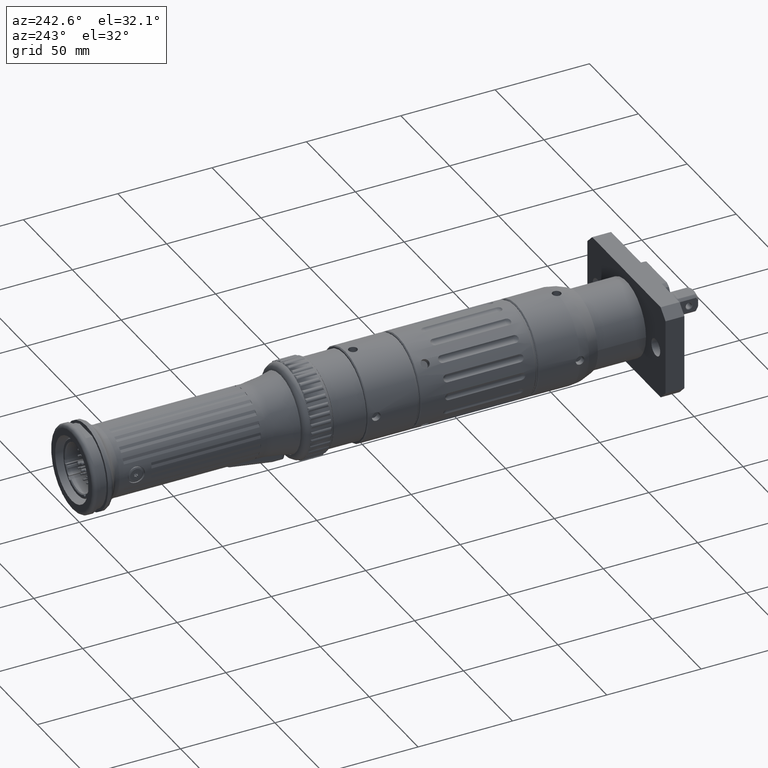
[diagram: clean part render]
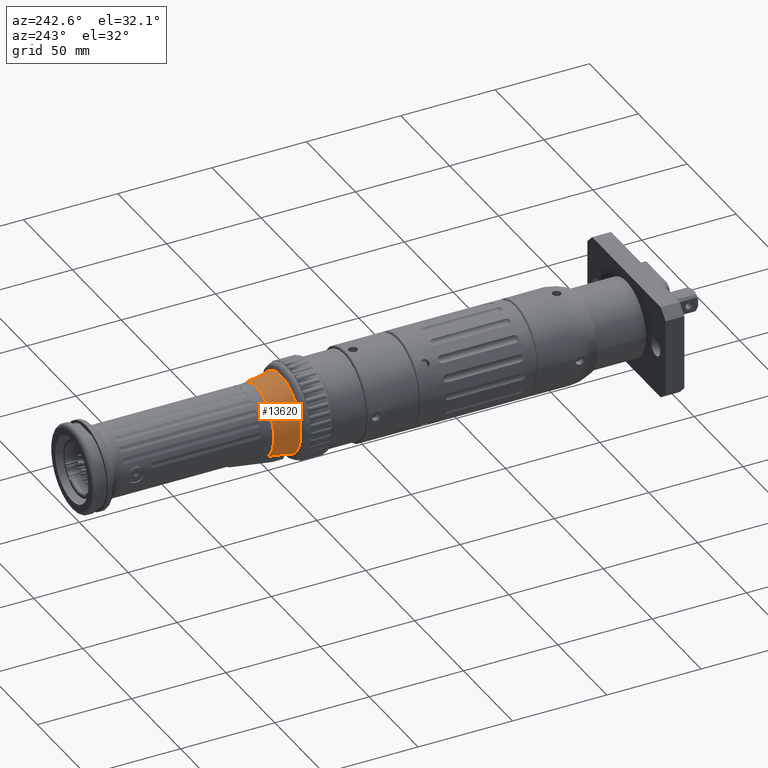
[diagram: same view with one face highlighted and labeled with its STEP entity id]
A machine part, auxiliary view. The second image highlights one B-rep face of the part: STEP entity #13620.
In plain terms, the highlighted conical surface has half-angle 9.462 deg.
Its self-contained STEP definition (entity closure, byte-faithful):
#89=(
BOUNDED_CURVE()
B_SPLINE_CURVE(2,(#21481,#21482,#21483),.UNSPECIFIED.,.F.,.F.)
B_SPLINE_CURVE_WITH_KNOTS((3,3),(0.301451099232859,1.34650575535226),
 .UNSPECIFIED.)
CURVE()
GEOMETRIC_REPRESENTATION_ITEM()
RATIONAL_B_SPLINE_CURVE((1.00077448627967,1.00178589435986,1.00050185933746))
REPRESENTATION_ITEM('')
);
#90=(
BOUNDED_CURVE()
B_SPLINE_CURVE(2,(#21493,#21494,#21495),.UNSPECIFIED.,.F.,.F.)
B_SPLINE_CURVE_WITH_KNOTS((3,3),(0.177331248463677,1.22238590458291),
 .UNSPECIFIED.)
CURVE()
GEOMETRIC_REPRESENTATION_ITEM()
RATIONAL_B_SPLINE_CURVE((1.00050185933742,1.0017858943597,1.00077448627961))
REPRESENTATION_ITEM('')
);
#482=CONICAL_SURFACE('',#14652,19.25,9.46232220802565);
#1140=FACE_OUTER_BOUND('',#2076,.T.);
#2076=EDGE_LOOP('',(#9227,#9228,#9229,#9230,#9231,#9232));
#2955=CIRCLE('',#14364,5268.20014690571);
#3092=CIRCLE('',#14640,5268.20014723951);
#3093=CIRCLE('',#14650,18.2721215233571);
#3095=CIRCLE('',#14653,20.5);
#5540=VERTEX_POINT('',#20754);
#5544=VERTEX_POINT('',#20771);
#5711=VERTEX_POINT('',#21478);
#5712=VERTEX_POINT('',#21480);
#5716=VERTEX_POINT('',#21492);
#5735=VERTEX_POINT('',#21870);
#6830=EDGE_CURVE('',#5540,#5544,#2955,.T.);
#7024=EDGE_CURVE('',#5712,#5711,#89,.T.);
#7029=EDGE_CURVE('',#5716,#5540,#90,.T.);
#7072=EDGE_CURVE('',#5735,#5712,#3092,.T.);
#7105=EDGE_CURVE('',#5716,#5711,#3093,.T.);
#7107=EDGE_CURVE('',#5544,#5735,#3095,.T.);
#9227=ORIENTED_EDGE('',*,*,#7105,.F.);
#9228=ORIENTED_EDGE('',*,*,#7029,.T.);
#9229=ORIENTED_EDGE('',*,*,#6830,.T.);
#9230=ORIENTED_EDGE('',*,*,#7107,.T.);
#9231=ORIENTED_EDGE('',*,*,#7072,.T.);
#9232=ORIENTED_EDGE('',*,*,#7024,.T.);
#13620=ADVANCED_FACE('',(#1140),#482,.T.);
#14364=AXIS2_PLACEMENT_3D('',#20773,#16277,#16278);
#14640=AXIS2_PLACEMENT_3D('',#21871,#16894,#16895);
#14650=AXIS2_PLACEMENT_3D('',#21938,#16946,#16947);
#14652=AXIS2_PLACEMENT_3D('',#21940,#16950,#16951);
#14653=AXIS2_PLACEMENT_3D('',#21941,#16952,#16953);
#16277=DIRECTION('center_axis',(-1.,-1.59972178624586E-12,9.00575151370838E-12));
#16278=DIRECTION('ref_axis',(-9.14672961967906E-12,0.174596569280771,-0.984640055043154));
#16894=DIRECTION('center_axis',(1.,4.0260122575636E-13,-2.26845774883989E-12));
#16895=DIRECTION('ref_axis',(-2.30390701443336E-12,0.175194385179483,-0.984533863004002));
#16946=DIRECTION('center_axis',(5.48477843742726E-16,1.,-3.14797576437676E-15));
#16947=DIRECTION('ref_axis',(-1.02166029305962E-15,3.14797576437676E-15,
1.));
#16950=DIRECTION('center_axis',(-5.48477843742726E-16,-1.,3.14797576437676E-15));
#16951=DIRECTION('ref_axis',(-9.2981178312357E-16,3.14797576437676E-15,
1.));
#16952=DIRECTION('center_axis',(5.48477843742726E-16,1.,-3.14797576437676E-15));
#16953=DIRECTION('ref_axis',(-1.,5.48477843742723E-16,-9.29811783123572E-16));
#20754=CARTESIAN_POINT('',(-7.00000000000013,196.149413788061,-18.708407954822));
#20771=CARTESIAN_POINT('',(-6.99999999999983,193.,-19.2678488679978));
#20773=CARTESIAN_POINT('Origin',(-6.99999995181303,-726.809671934194,5168.0130337596));
#21478=CARTESIAN_POINT('',(7.00000000000018,206.367270859858,-16.8781048984872));
#21480=CARTESIAN_POINT('',(6.99999999999988,196.149413788061,-18.7084079548222));
#21481=CARTESIAN_POINT('Ctrl Pts',(7.00000000000017,196.14941378806,-18.7084079548221));
#21482=CARTESIAN_POINT('Ctrl Pts',(7.00000000000017,201.521107252719,-17.7525088563988));
#21483=CARTESIAN_POINT('Ctrl Pts',(7.00000000000017,206.367270859858,-16.8781048984872));
#21492=CARTESIAN_POINT('',(-6.99999999999983,206.367270859858,-16.8781048984872));
#21493=CARTESIAN_POINT('Ctrl Pts',(-6.99999999999983,206.367270859858,-16.8781048984872));
#21494=CARTESIAN_POINT('Ctrl Pts',(-6.99999999999983,201.521107252717,-17.7525088563992));
#21495=CARTESIAN_POINT('Ctrl Pts',(-6.99999999999983,196.149413788061,-18.7084079548221));
#21870=CARTESIAN_POINT('',(7.00000000000017,193.,-19.2678488679978));
#21871=CARTESIAN_POINT('Origin',(7.00000001213761,-726.80967201003,5168.01303408515));
#21938=CARTESIAN_POINT('Origin',(1.55046354258744E-13,206.367270859858,
-1.85037719465042E-13));
#21940=CARTESIAN_POINT('Origin',(1.55744242837887E-13,200.5,-1.66567692995178E-13));
#21941=CARTESIAN_POINT('Origin',(1.51630659009817E-13,193.,-1.42957874762352E-13));